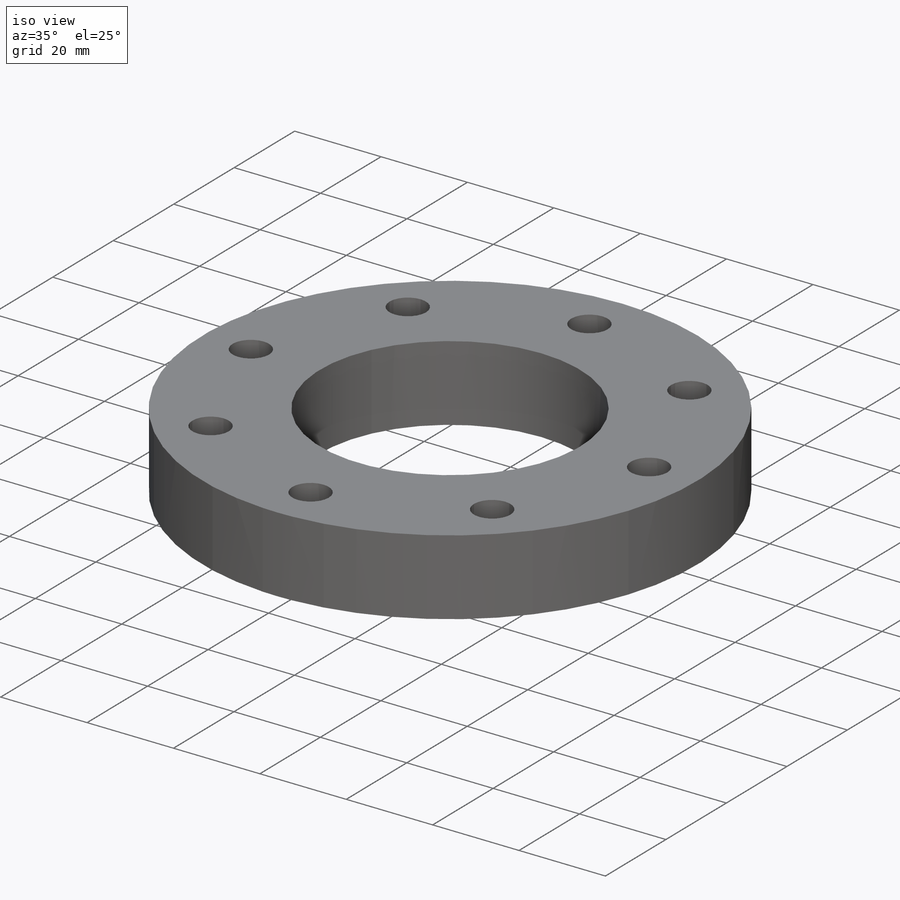
[diagram: iso view]
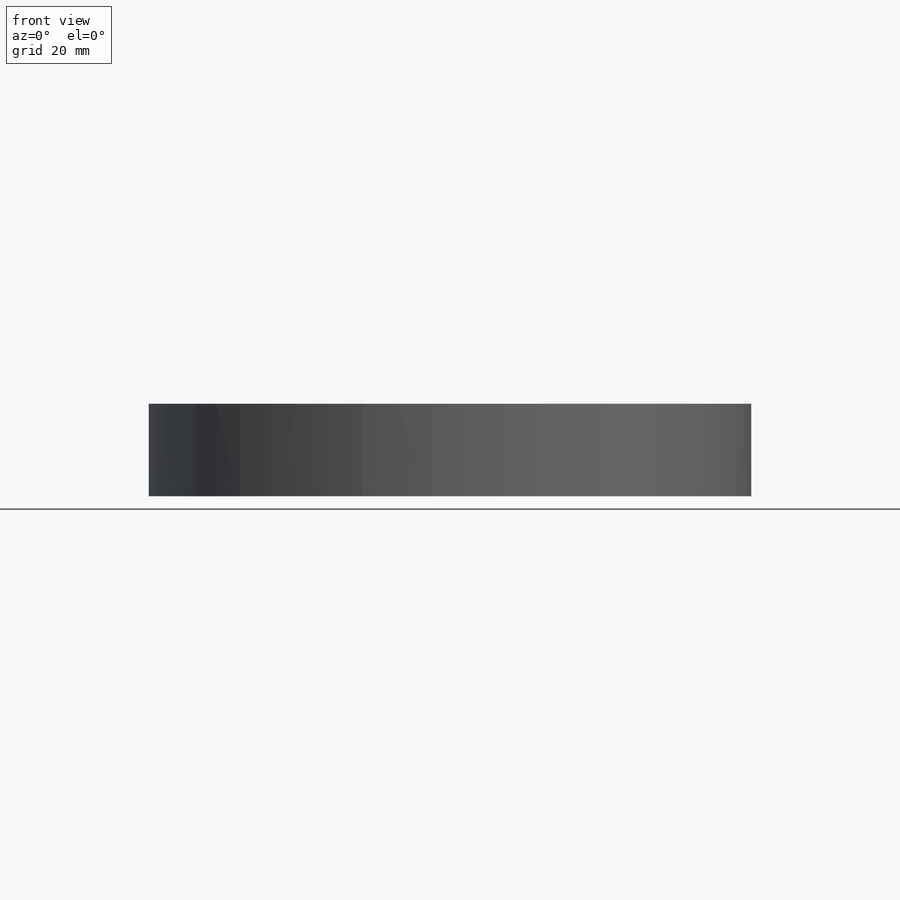
[diagram: front view]
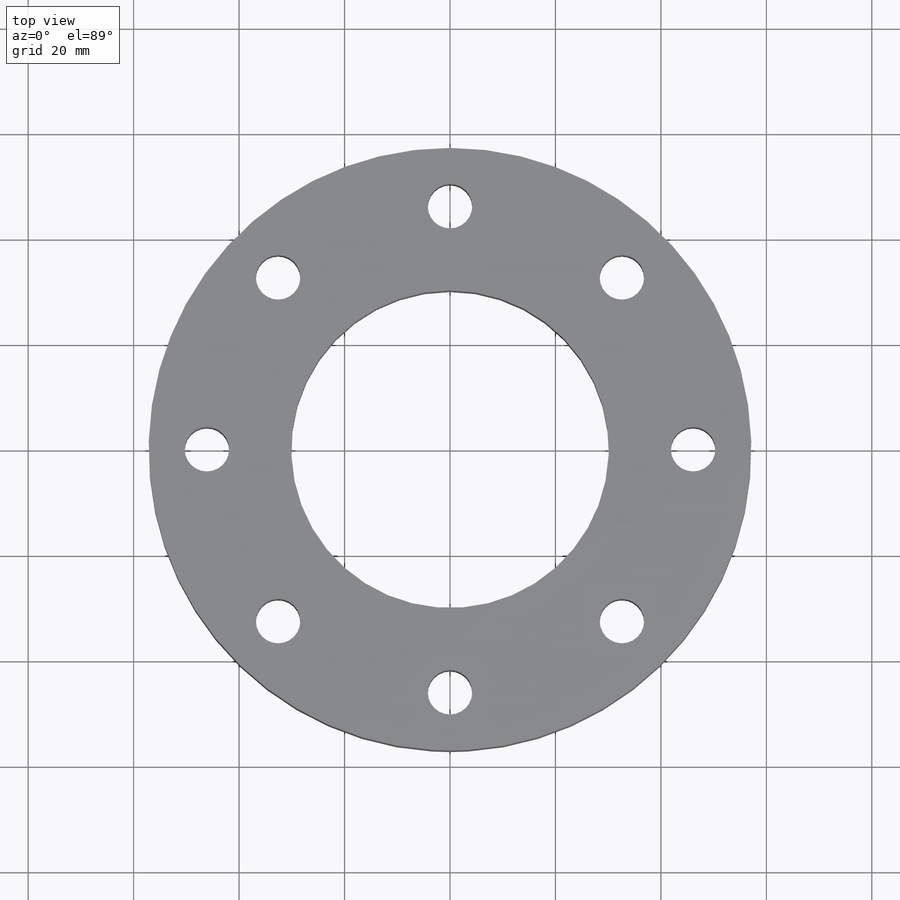
[diagram: top view]
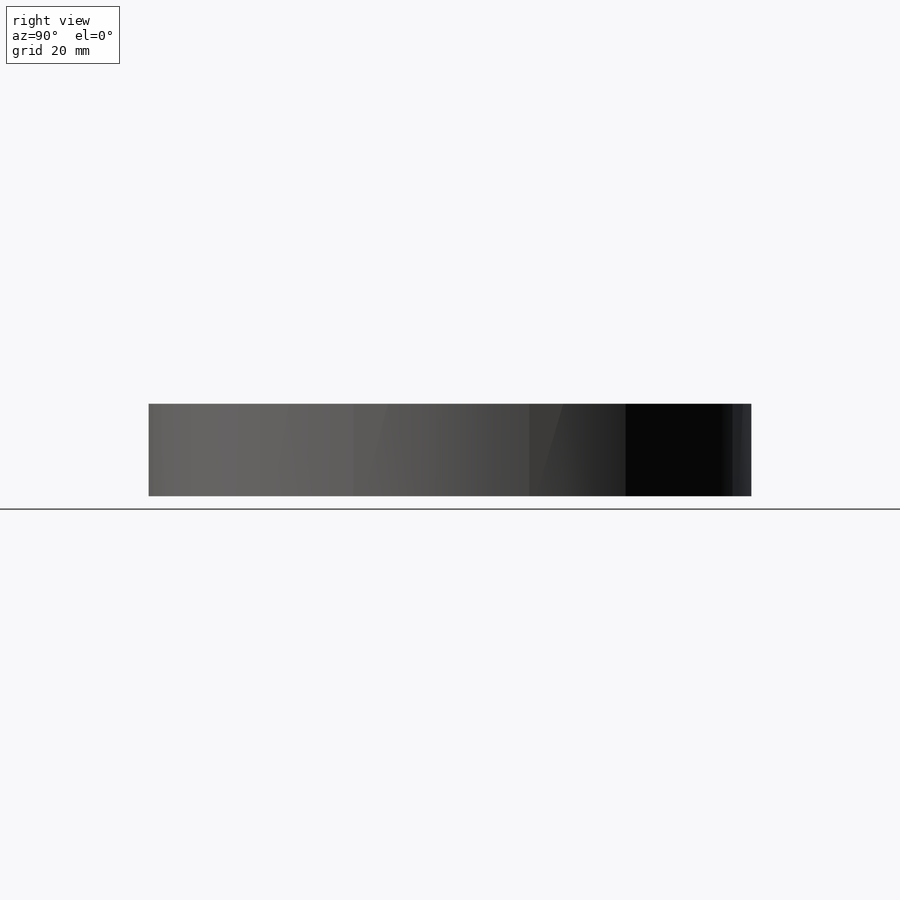
[diagram: right view]
SOLIDWORKS PART (.sldprt)
format: sldprt  version: not decoded by parser v0  size: 109,056 bytes
history: native  units: mm
features: sketch x4, material x1, cut_extrude x1, pattern_circular x1, plane x1, extrude x1 (+11 scaffold rows collapsed)
feature tree (20):
  scaffold x11  (default folders/planes/origin — collapsed)
  material  "Material <not specified>"
  sketch  "Sketch1"  dims[c1.D1=114.3mm c2.D1=17.526mm c2.D5=27.051mm c2.D6=1.0mm c2.D7=5.0mm]
  sketch  "Sketch2"  dims[D1=46.101mm]
  cut_extrude  "Cut-Extrude2"  Depth=17.526mm
  pattern_circular  "CirPattern1"  Count=8 Angle=360deg
  sketch  "Sketch4"
  plane  "Plane1"  Offset=0mm
  sketch  "Sketch5"  dims[D1=91.44mm]
  extrude  "Extrude1"  Depth=144.526mm
decode coverage: 6 of 7 modeling features carry decoded parameters
note: suppression state not decoded; provenance and decode notes live in map.json
